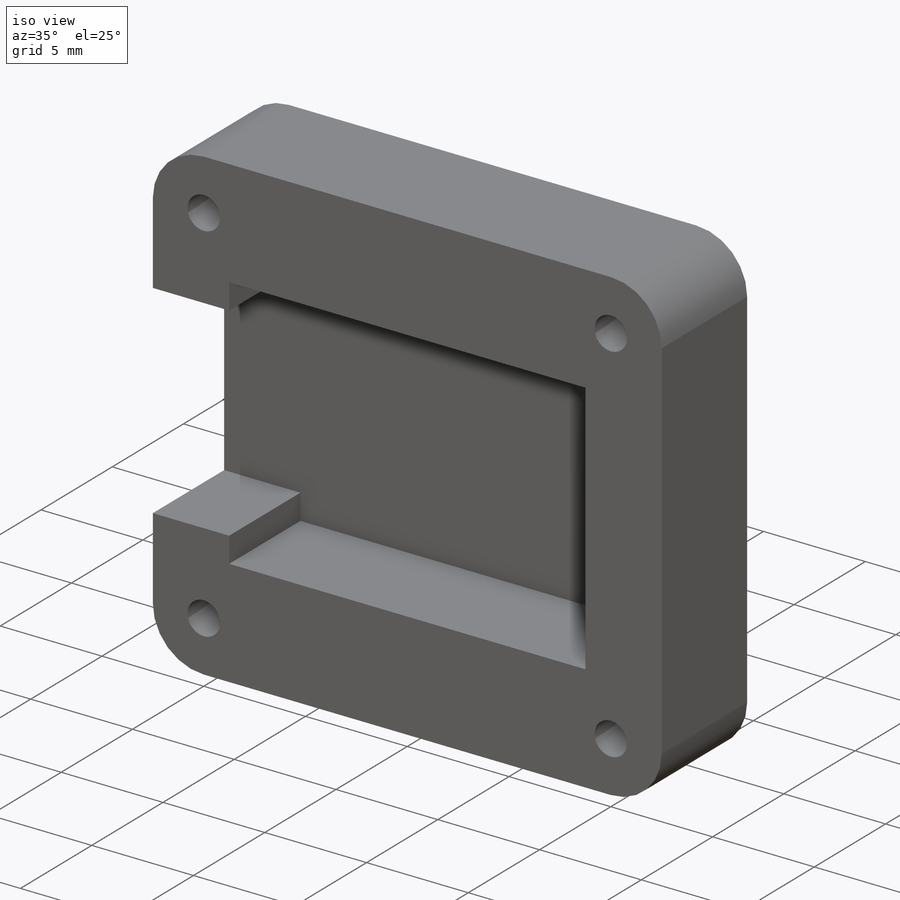
[diagram: iso view]
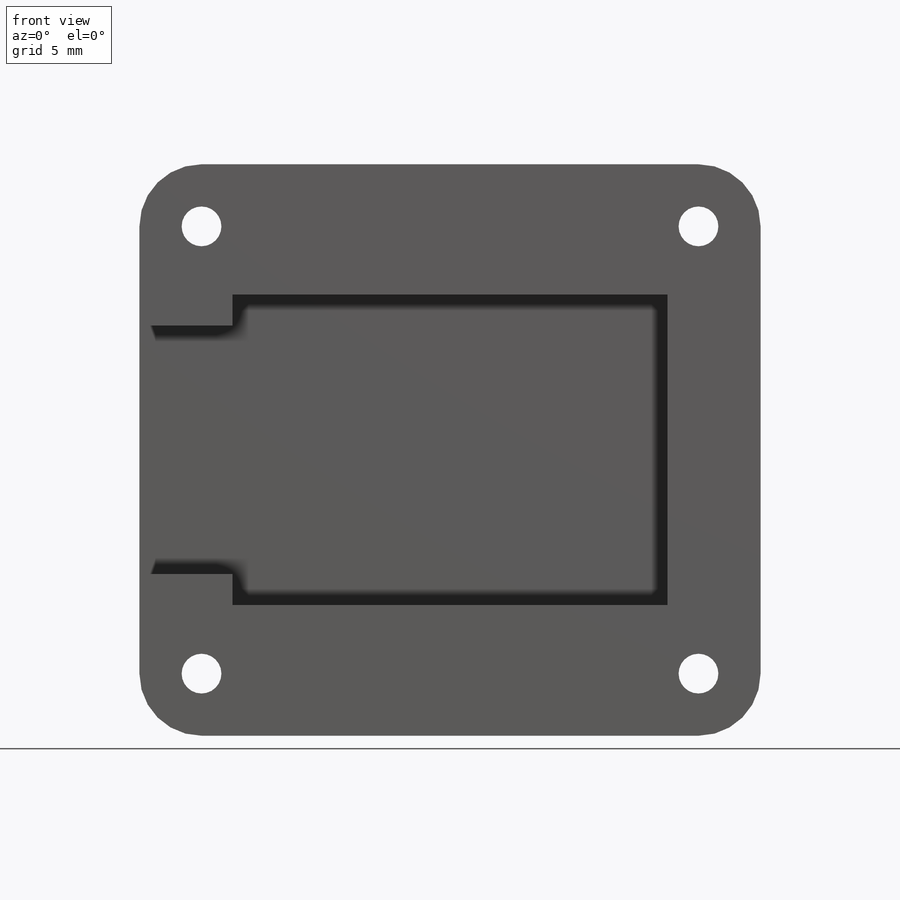
[diagram: front view]
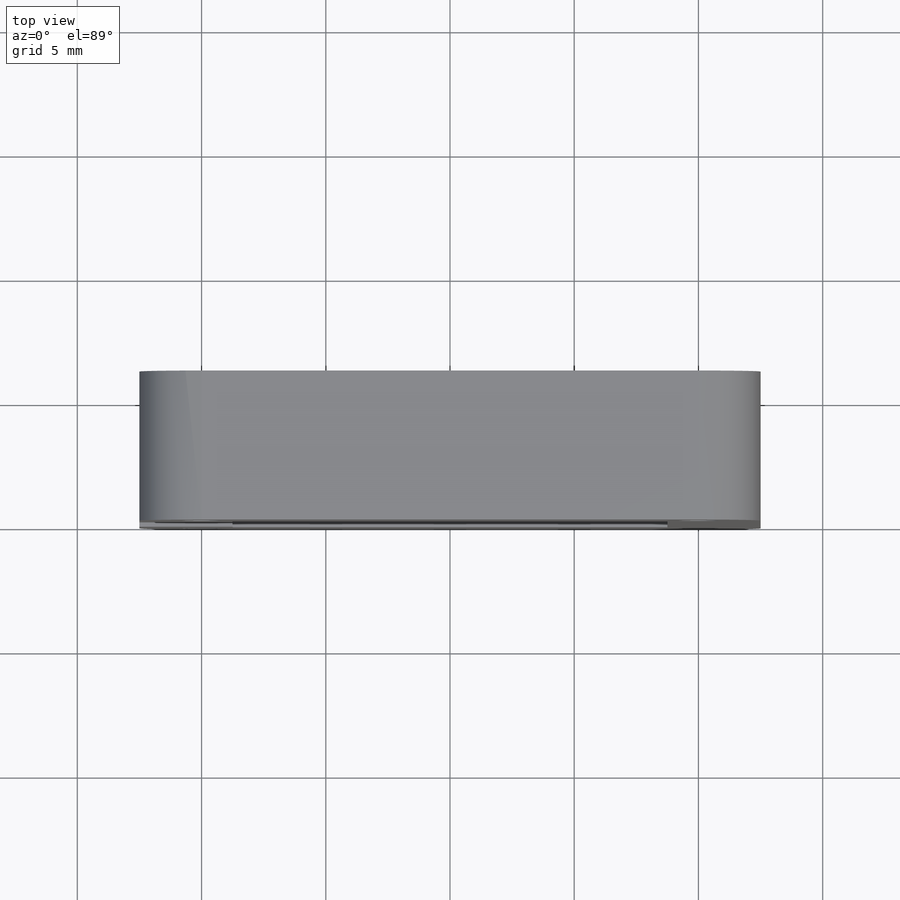
[diagram: top view]
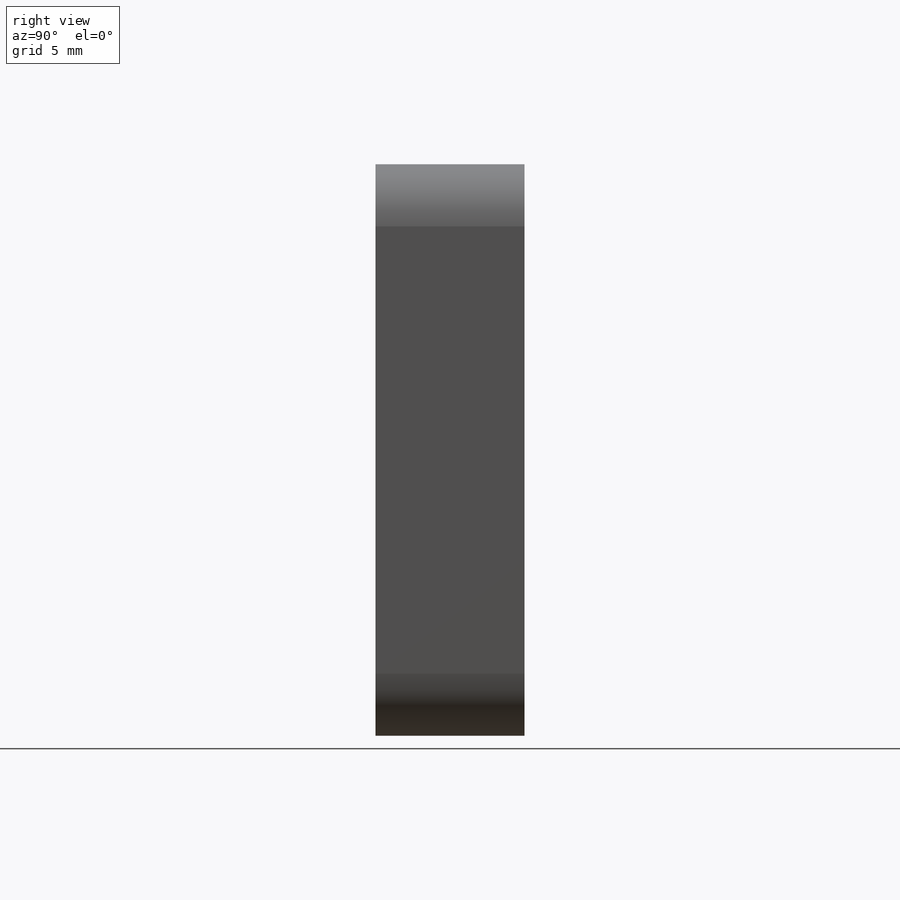
[diagram: right view]
SOLIDWORKS PART (.sldprt)
format: sldprt  version: not decoded by parser v0  size: 208,896 bytes
history: native  units: mm
features: sketch x5, plane x3, cut_extrude x2, material x1, extrude x1, hole x1, fillet x1 (+9 scaffold rows collapsed)
feature tree (23):
  scaffold x9  (default folders/planes/origin — collapsed)
  material  "PVC hart"
  plane  "Ebene vorne"
  plane  "Ebene oben"
  plane  "Ebene rechts"
  sketch  "Skizze1"  dims[c1.D5=~1.69061mm c1.D1=12.5mm c1.D2=17.5mm c1.D3=20.0mm c1.D4=25.0mm c2.D3=20.0mm c2.D5=30.0mm c2.D6=18.0mm c2.D4=2.5mm c3.D5=2.5mm]
  extrude  "Aufsatz-Linear austragen1"  Depth=6mm
  cut_extrude  "Schnitt-Linear austragen1"  [1 undecoded]
  sketch  "Skizze1<3>"  dims[D1=5.0mm]
  sketch  "Skizze2"  dims[D1=10.0mm]
  cut_extrude  "Schnitt-Linear austragen2"  [1 undecoded]
  hole  "Formsenkung für M3 Senkschraube mit Innensechskant1"  Diameter=1.6mm Depth=6mm
  sketch  "Skizze4"
  sketch  "Skizze3"  dims[hole-wizard template sketch: 54 standard entries collapsed; hole parameters kept: c17.Bohrerdurchmesser=1.6mm c17.Bohrungstiefe=6.0mm c17.Senkdurchmesser (Oben)=3.5mm c17.D4=~3.666174mm c17.Senkwinkel (Oben)=90.0deg]
  fillet  "Verrundung1"  Radius=2.5mm
decode coverage: 7 of 10 modeling features carry decoded parameters
note: ~ marks probable driven/reference dimensions
note: 2 parameter values undecoded
note: suppression state not decoded; provenance and decode notes live in map.json
